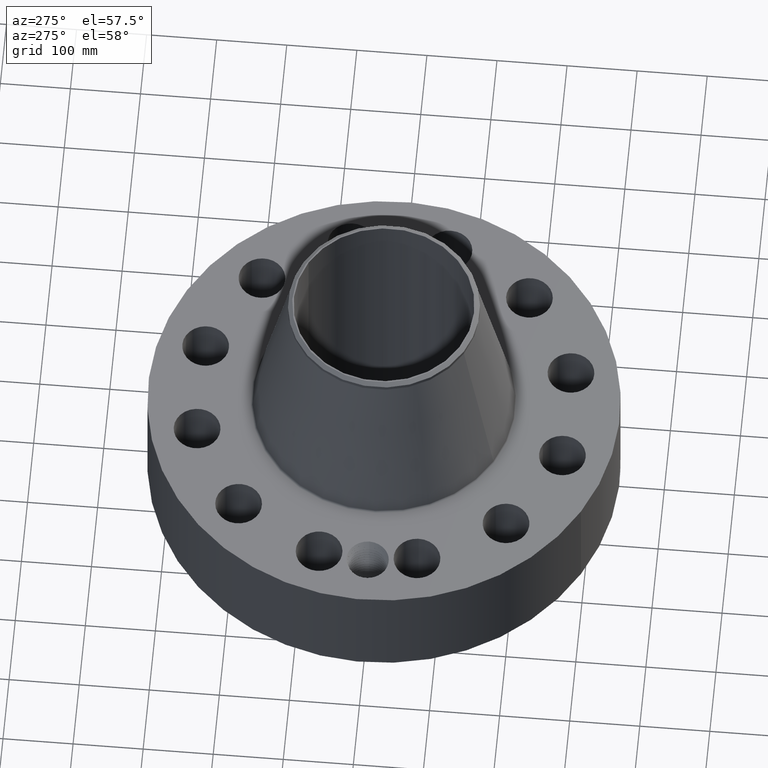
[diagram: clean part render]
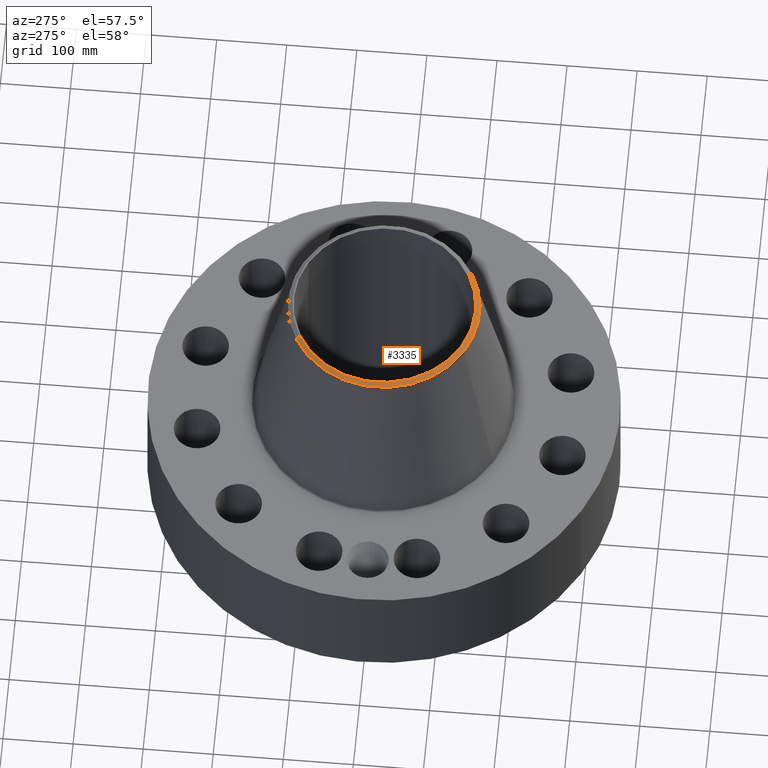
[diagram: same view with one face highlighted and labeled with its STEP entity id]
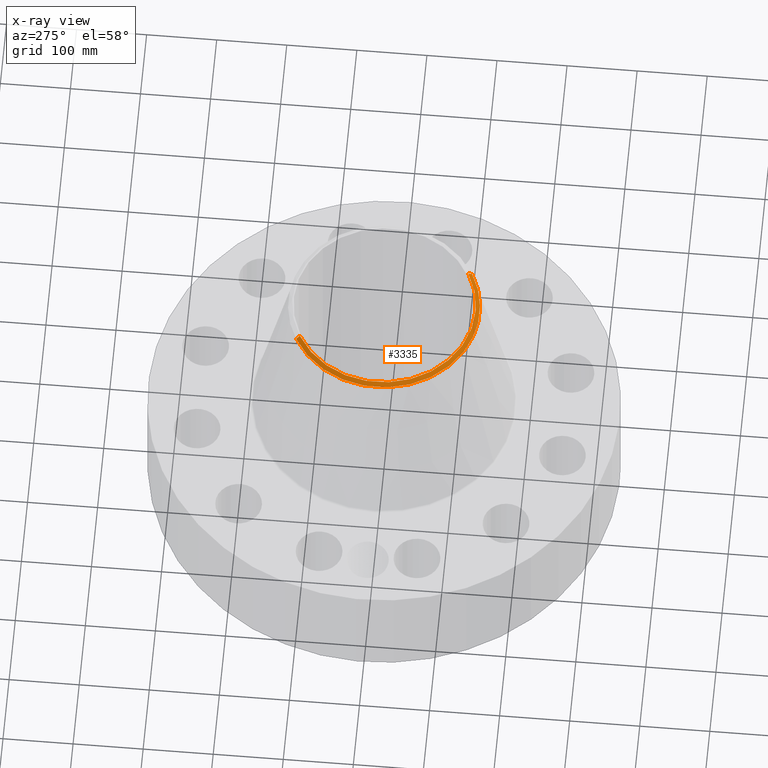
[diagram: x-ray of the same camera — body ghosted, the highlighted face saturated]
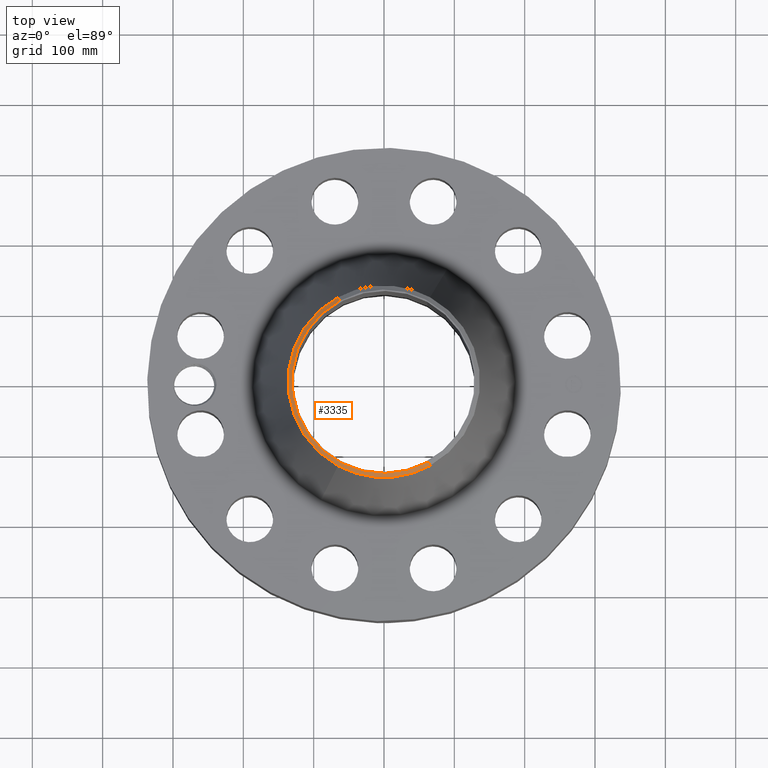
[diagram: same view with one face highlighted and labeled with its STEP entity id]
A machine part, auxiliary view. The second image highlights one B-rep face of the part: STEP entity #3335.
The next image is the same camera in x-ray: the body ghosted, the highlighted face saturated — about 0% of this face is hidden behind the body in this view.
A second angle (top view) of the same face is appended — the face is thin or edge-on in the first view.
In plain terms, the highlighted conical surface has half-angle 52.5 deg.
Its self-contained STEP definition (entity closure, byte-faithful):
#2446=AXIS2_PLACEMENT_3D('Circle Axis2P3D',#2444,#2445,$) ;
#3300=AXIS2_PLACEMENT_3D('Cone Axis2P3D',#3297,#3298,#3299) ;
#3318=AXIS2_PLACEMENT_3D('Circle Axis2P3D',#3316,#3317,$) ;
#3325=AXIS2_PLACEMENT_3D('Circle Axis2P3D',#3323,#3324,$) ;
#2439=CARTESIAN_POINT('Vertex',(2.46747867207,-4.5166894128,16.7500000001)) ;
#2441=CARTESIAN_POINT('Vertex',(-2.46747867207,4.5166894128,16.7500000001)) ;
#2444=CARTESIAN_POINT('Axis2P3D Location',(0.,0.,16.7500000001)) ;
#3297=CARTESIAN_POINT('Axis2P3D Location',(0.,0.,16.7500000001)) ;
#3302=CARTESIAN_POINT('Line Origine',(2.52219547104,-4.61684784149,16.6624250313)) ;
#3306=CARTESIAN_POINT('Vertex',(2.57691227001,-4.71700627018,16.5748500626)) ;
#3309=CARTESIAN_POINT('Line Origine',(-2.52219547104,4.61684784149,16.6624250313)) ;
#3313=CARTESIAN_POINT('Vertex',(-2.57691227001,4.71700627018,16.5748500626)) ;
#3316=CARTESIAN_POINT('Axis2P3D Location',(0.,0.,16.5748500626)) ;
#3320=CARTESIAN_POINT('Vertex',(-2.57691227001,-4.71700627018,16.5748500626)) ;
#3323=CARTESIAN_POINT('Axis2P3D Location',(0.,0.,16.5748500626)) ;
#2445=DIRECTION('Axis2P3D Direction',(0.,0.,-0.0393700787402)) ;
#3298=DIRECTION('Axis2P3D Direction',(-0.,-0.,-0.0393700787402)) ;
#3299=DIRECTION('Axis2P3D XDirection',(-0.0188750212049,0.0345504945626,0.)) ;
#3303=DIRECTION('Vector Direction',(0.014974561121,-0.02741075027,-0.023966985394)) ;
#3310=DIRECTION('Vector Direction',(-0.014974561121,0.02741075027,-0.023966985394)) ;
#3317=DIRECTION('Axis2P3D Direction',(0.,0.,-0.0393700787402)) ;
#3324=DIRECTION('Axis2P3D Direction',(0.,0.,-0.0393700787402)) ;
#3304=VECTOR('Line Direction',#3303,0.0393700787402) ;
#3311=VECTOR('Line Direction',#3310,0.0393700787402) ;
#3329=ORIENTED_EDGE('',*,*,#3308,.F.) ;
#3330=ORIENTED_EDGE('',*,*,#2448,.F.) ;
#3331=ORIENTED_EDGE('',*,*,#3315,.T.) ;
#3332=ORIENTED_EDGE('',*,*,#3322,.T.) ;
#3333=ORIENTED_EDGE('',*,*,#3327,.F.) ;
#3335=ADVANCED_FACE('PartBody',(#3334),#3301,.T.) ;
#2447=CIRCLE('generated circle',#2446,5.1467401575) ;
#3319=CIRCLE('generated circle',#3318,5.37500000002) ;
#3326=CIRCLE('generated circle',#3325,5.37500000002) ;
#3301=CONICAL_SURFACE('Cone',#3300,5.1467401575,0.916297857297) ;
#2448=EDGE_CURVE('',#2442,#2440,#2447,.F.) ;
#3308=EDGE_CURVE('',#2440,#3307,#3305,.T.) ;
#3315=EDGE_CURVE('',#2442,#3314,#3312,.T.) ;
#3322=EDGE_CURVE('',#3314,#3321,#3319,.F.) ;
#3327=EDGE_CURVE('',#3307,#3321,#3326,.T.) ;
#3328=EDGE_LOOP('',(#3329,#3330,#3331,#3332,#3333)) ;
#3334=FACE_OUTER_BOUND('',#3328,.T.) ;
#3305=LINE('Line',#3302,#3304) ;
#3312=LINE('Line',#3309,#3311) ;
#2440=VERTEX_POINT('',#2439) ;
#2442=VERTEX_POINT('',#2441) ;
#3307=VERTEX_POINT('',#3306) ;
#3314=VERTEX_POINT('',#3313) ;
#3321=VERTEX_POINT('',#3320) ;